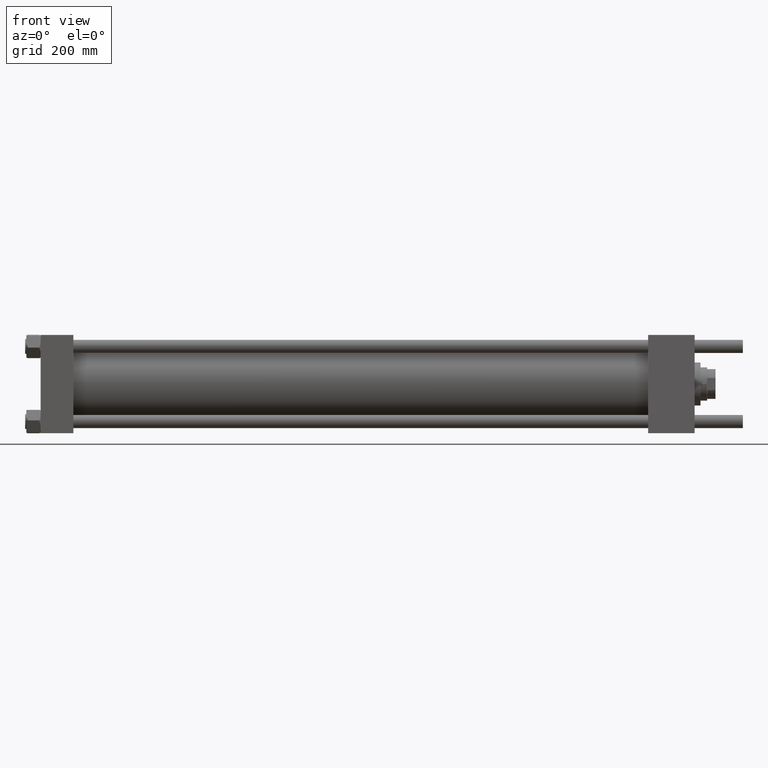
[diagram: clean part render]
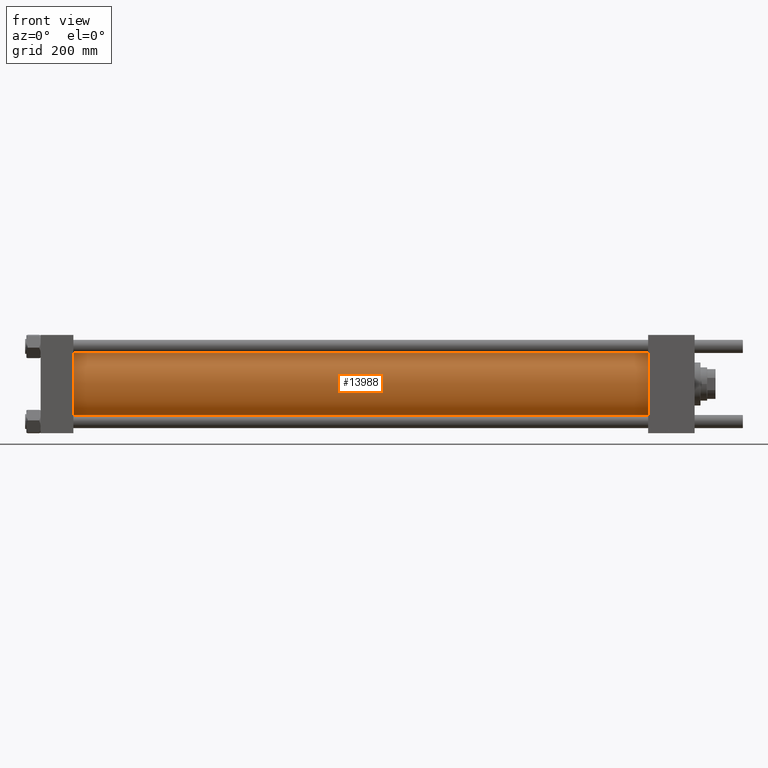
[diagram: same view with one face highlighted and labeled with its STEP entity id]
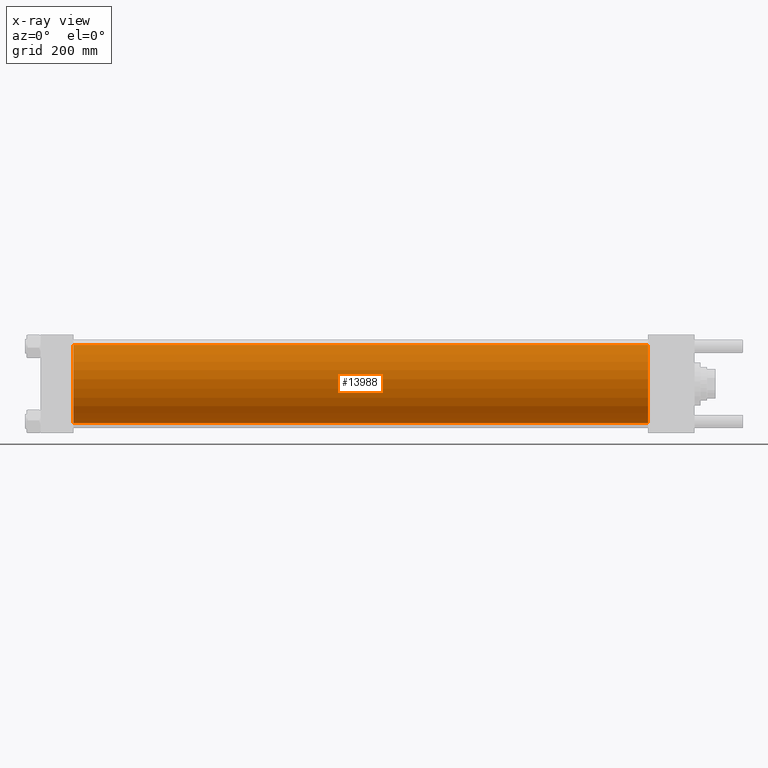
[diagram: x-ray of the same camera — body ghosted, the highlighted face saturated]
A machine part, front view. The second image highlights one B-rep face of the part: STEP entity #13988.
The next image is the same camera in x-ray: the body ghosted, the highlighted face saturated — about 0% of this face is hidden behind the body in this view.
In plain terms, the highlighted cylindrical surface (partial cylindrical patch) has radius 65.5 mm, axis along (-1, -0, -0).
Its self-contained STEP definition (entity closure, byte-faithful):
#661 = CARTESIAN_POINT ( 'NONE',  ( 1018.999999999999886, -2.602085213965210642E-15, 0.000000000000000000 ) ) ;
#719 = CARTESIAN_POINT ( 'NONE',  ( 55.00000000000004974, -2.602085213965210642E-15, 65.50000000000001421 ) ) ;
#721 = VERTEX_POINT ( 'NONE', #44099 ) ;
#2210 = FACE_OUTER_BOUND ( 'NONE', #48326, .T. ) ;
#2498 = DIRECTION ( 'NONE',  ( -1.000000000000000000, -0.000000000000000000, -0.000000000000000000 ) ) ;
#2619 = DIRECTION ( 'NONE',  ( 0.000000000000000000, 0.000000000000000000, 1.000000000000000000 ) ) ;
#5835 = EDGE_CURVE ( 'NONE', #721, #33690, #47759, .T. ) ;
#7146 = ORIENTED_EDGE ( 'NONE', *, *, #53372, .T. ) ;
#8800 = AXIS2_PLACEMENT_3D ( 'NONE', #19870, #15530, #33190 ) ;
#12533 = CYLINDRICAL_SURFACE ( 'NONE', #8800, 65.50000000000001421 ) ;
#13811 = VERTEX_POINT ( 'NONE', #56398 ) ;
#13988 = ADVANCED_FACE ( 'NONE', ( #2210 ), #12533, .T. ) ;
#14076 = EDGE_CURVE ( 'NONE', #721, #13811, #51378, .T. ) ;
#15310 = AXIS2_PLACEMENT_3D ( 'NONE', #51546, #46318, #2619 ) ;
#15530 = DIRECTION ( 'NONE',  ( -1.000000000000000000, -0.000000000000000000, -0.000000000000000000 ) ) ;
#16788 = DIRECTION ( 'NONE',  ( -1.000000000000000000, -0.000000000000000000, -0.000000000000000000 ) ) ;
#17159 = AXIS2_PLACEMENT_3D ( 'NONE', #661, #43799, #21806 ) ;
#18890 = VECTOR ( 'NONE', #16788, 1000.000000000000000 ) ;
#19870 = CARTESIAN_POINT ( 'NONE',  ( 1018.999999999999886, -2.602085213965210642E-15, 0.000000000000000000 ) ) ;
#21806 = DIRECTION ( 'NONE',  ( 0.000000000000000000, 0.000000000000000000, -1.000000000000000000 ) ) ;
#23020 = VECTOR ( 'NONE', #2498, 1000.000000000000000 ) ;
#23965 = CARTESIAN_POINT ( 'NONE',  ( 55.00000000000004974, 5.419351320449954973E-15, -65.50000000000001421 ) ) ;
#24970 = EDGE_CURVE ( 'NONE', #13811, #31171, #33765, .T. ) ;
#25483 = CARTESIAN_POINT ( 'NONE',  ( 1018.999999999999886, -2.602085213965210642E-15, 65.50000000000001421 ) ) ;
#29692 = ORIENTED_EDGE ( 'NONE', *, *, #5835, .T. ) ;
#29982 = CARTESIAN_POINT ( 'NONE',  ( 1018.999999999999886, 5.419351320449954973E-15, -65.50000000000001421 ) ) ;
#31171 = VERTEX_POINT ( 'NONE', #23965 ) ;
#32877 = CIRCLE ( 'NONE', #15310, 65.50000000000001421 ) ;
#33190 = DIRECTION ( 'NONE',  ( 0.000000000000000000, 0.000000000000000000, 1.000000000000000000 ) ) ;
#33690 = VERTEX_POINT ( 'NONE', #719 ) ;
#33765 = LINE ( 'NONE', #29982, #23020 ) ;
#34802 = ORIENTED_EDGE ( 'NONE', *, *, #14076, .F. ) ;
#38975 = ORIENTED_EDGE ( 'NONE', *, *, #24970, .F. ) ;
#43799 = DIRECTION ( 'NONE',  ( 1.000000000000000000, 0.000000000000000000, 0.000000000000000000 ) ) ;
#44099 = CARTESIAN_POINT ( 'NONE',  ( 1018.999999999999886, -2.602085213965210642E-15, 65.50000000000001421 ) ) ;
#46318 = DIRECTION ( 'NONE',  ( 1.000000000000000000, -0.000000000000000000, -0.000000000000000000 ) ) ;
#47759 = LINE ( 'NONE', #25483, #18890 ) ;
#48326 = EDGE_LOOP ( 'NONE', ( #38975, #34802, #29692, #7146 ) ) ;
#51378 = CIRCLE ( 'NONE', #17159, 65.50000000000001421 ) ;
#51546 = CARTESIAN_POINT ( 'NONE',  ( 55.00000000000004974, -2.602085213965210642E-15, 0.000000000000000000 ) ) ;
#53372 = EDGE_CURVE ( 'NONE', #33690, #31171, #32877, .T. ) ;
#56398 = CARTESIAN_POINT ( 'NONE',  ( 1018.999999999999886, 5.419351320449954973E-15, -65.50000000000001421 ) ) ;